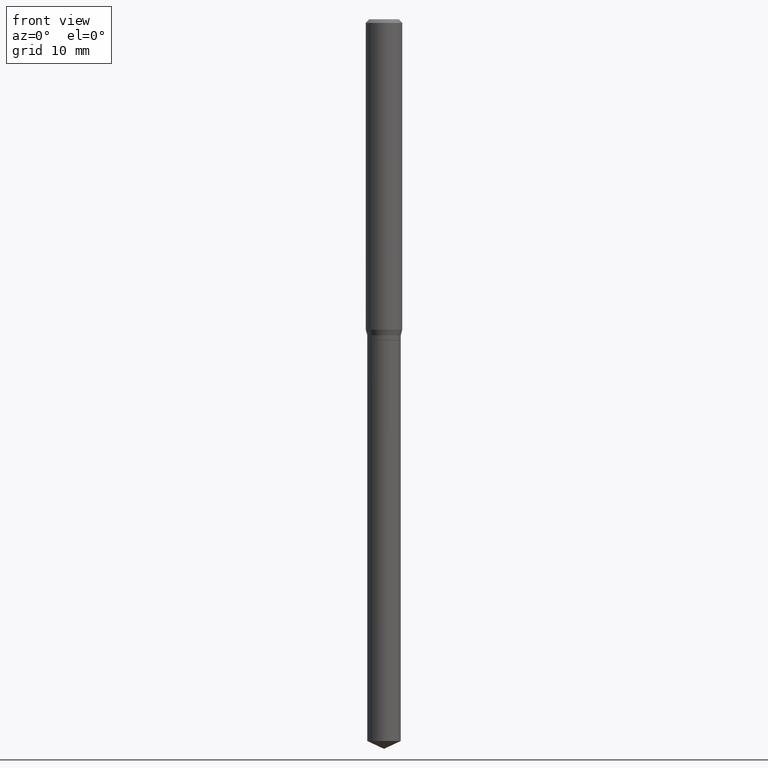
[diagram: clean part render]
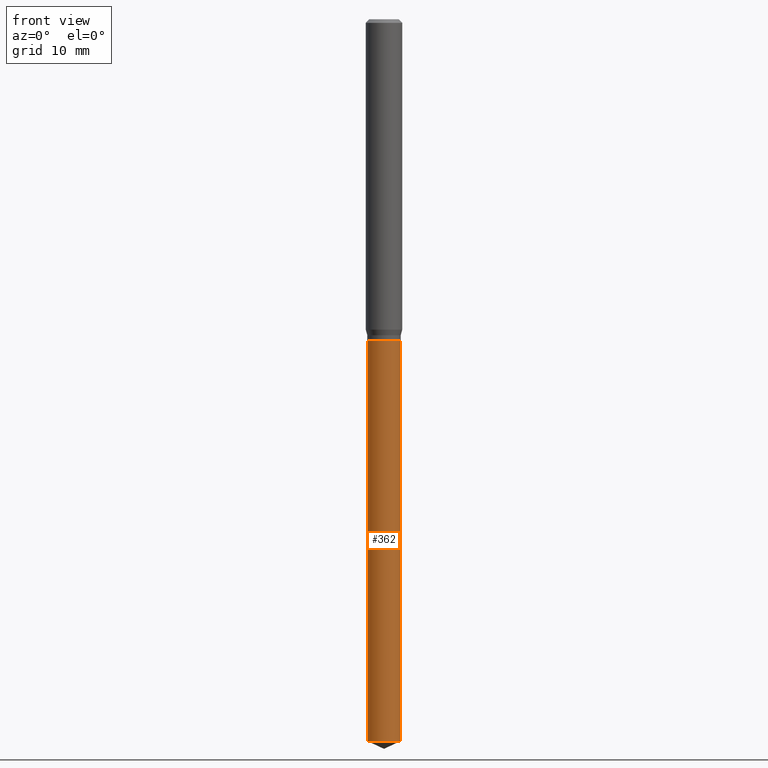
[diagram: same view with one face highlighted and labeled with its STEP entity id]
A machine part, front view. The second image highlights one B-rep face of the part: STEP entity #362.
In plain terms, the highlighted cylindrical surface (edge-blend (fillet) strip) has radius 1.3754 mm, axis along (-0, 0, 1).
Its self-contained STEP definition (entity closure, byte-faithful):
#15 = AXIS2_PLACEMENT_3D ( 'NONE', #98, #152, #317 ) ;
#27 = VERTEX_POINT ( 'NONE', #37 ) ;
#29 = CARTESIAN_POINT ( 'NONE',  ( 0.05414999999999999675, -4.007173132590277853E-15, -1.039400000000000324 ) ) ;
#30 = ORIENTED_EDGE ( 'NONE', *, *, #275, .T. ) ;
#37 = CARTESIAN_POINT ( 'NONE',  ( 0.05414999999999999675, -4.007173132590277853E-15, -1.039400000000000324 ) ) ;
#41 = EDGE_CURVE ( 'NONE', #65, #177, #189, .T. ) ;
#65 = VERTEX_POINT ( 'NONE', #224 ) ;
#66 = LINE ( 'NONE', #29, #300 ) ;
#91 = AXIS2_PLACEMENT_3D ( 'NONE', #308, #346, #168 ) ;
#98 = CARTESIAN_POINT ( 'NONE',  ( 2.541820277148831753E-29, -3.629045703593565980E-15, -1.039400000000000324 ) ) ;
#119 = CIRCLE ( 'NONE', #418, 0.05414999999999999675 ) ;
#139 = ORIENTED_EDGE ( 'NONE', *, *, #450, .F. ) ;
#145 = VERTEX_POINT ( 'NONE', #458 ) ;
#146 = CYLINDRICAL_SURFACE ( 'NONE', #15, 0.05414999999999999675 ) ;
#152 = DIRECTION ( 'NONE',  ( -2.445468806185136597E-29, 3.491481338843145583E-15, 1.000000000000000000 ) ) ;
#153 = DIRECTION ( 'NONE',  ( -2.445468806185136877E-29, 3.491481338843145188E-15, 1.000000000000000000 ) ) ;
#168 = DIRECTION ( 'NONE',  ( 1.000000000000000000, -6.982962677686261977E-15, 0.000000000000000000 ) ) ;
#177 = VERTEX_POINT ( 'NONE', #413 ) ;
#189 = LINE ( 'NONE', #443, #332 ) ;
#208 = DIRECTION ( 'NONE',  ( -2.445468806185136877E-29, 3.491481338843145188E-15, 1.000000000000000000 ) ) ;
#224 = CARTESIAN_POINT ( 'NONE',  ( -0.05415000000000000369, -7.774656469251370060E-15, -2.336949440310907011 ) ) ;
#275 = EDGE_CURVE ( 'NONE', #65, #145, #335, .T. ) ;
#300 = VECTOR ( 'NONE', #208, 39.37007874015748143 ) ;
#308 = CARTESIAN_POINT ( 'NONE',  ( 5.714936957912137219E-29, -8.159415360665465323E-15, -2.336949440310907011 ) ) ;
#317 = DIRECTION ( 'NONE',  ( 1.000000000000000000, -6.982962677686271444E-15, 0.000000000000000000 ) ) ;
#328 = DIRECTION ( 'NONE',  ( 1.000000000000000000, -6.982962677686261977E-15, 0.000000000000000000 ) ) ;
#332 = VECTOR ( 'NONE', #153, 39.37007874015748143 ) ;
#335 = CIRCLE ( 'NONE', #91, 0.05414999999999999675 ) ;
#346 = DIRECTION ( 'NONE',  ( -2.445468806185136597E-29, 3.491481338843145583E-15, 1.000000000000000000 ) ) ;
#360 = DIRECTION ( 'NONE',  ( -2.445468806185136597E-29, 3.491481338843145583E-15, 1.000000000000000000 ) ) ;
#362 = ADVANCED_FACE ( 'NONE', ( #434 ), #146, .T. ) ;
#379 = EDGE_CURVE ( 'NONE', #145, #27, #66, .T. ) ;
#400 = CARTESIAN_POINT ( 'NONE',  ( 2.541820277148831753E-29, -3.629045703593566769E-15, -1.039400000000000324 ) ) ;
#413 = CARTESIAN_POINT ( 'NONE',  ( -0.05414999999999999675, -5.509471640715421572E-15, -1.039400000000000324 ) ) ;
#418 = AXIS2_PLACEMENT_3D ( 'NONE', #400, #360, #328 ) ;
#425 = ORIENTED_EDGE ( 'NONE', *, *, #379, .T. ) ;
#434 = FACE_OUTER_BOUND ( 'NONE', #478, .T. ) ;
#443 = CARTESIAN_POINT ( 'NONE',  ( -0.05414999999999999675, -3.244286812179471901E-15, -1.039400000000000324 ) ) ;
#450 = EDGE_CURVE ( 'NONE', #177, #27, #119, .T. ) ;
#456 = ORIENTED_EDGE ( 'NONE', *, *, #41, .F. ) ;
#458 = CARTESIAN_POINT ( 'NONE',  ( 0.05415000000000000369, -8.537542789662176406E-15, -2.336949440310907011 ) ) ;
#478 = EDGE_LOOP ( 'NONE', ( #456, #30, #425, #139 ) ) ;